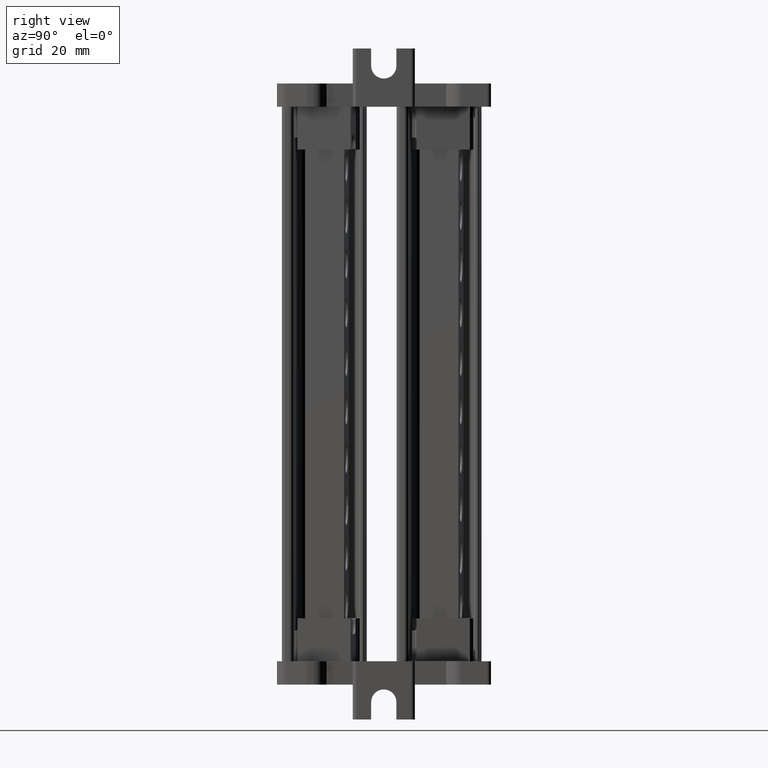
[diagram: clean part render]
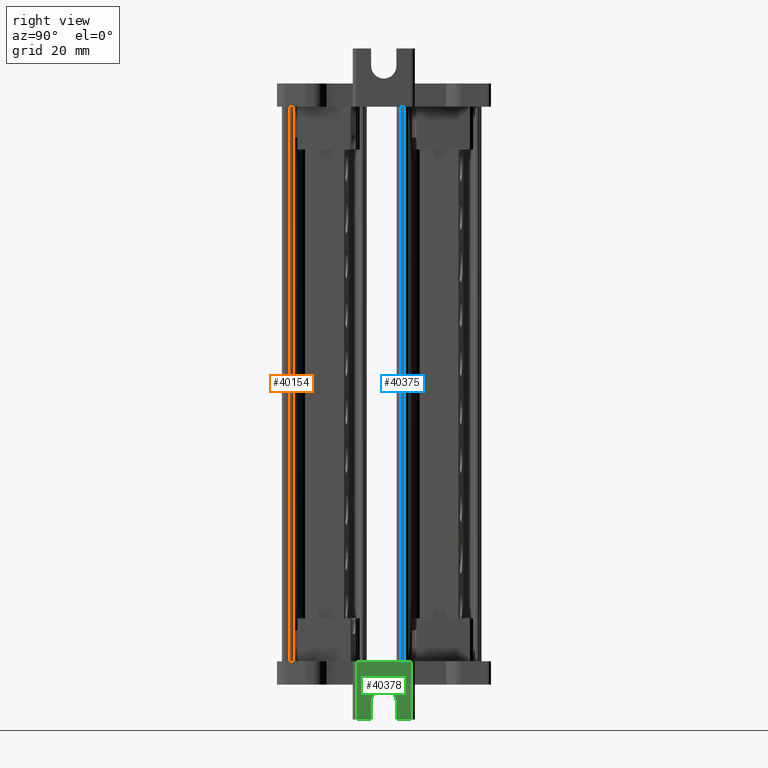
[diagram: same view with three faces highlighted in distinct colors, each labeled with its STEP entity id]
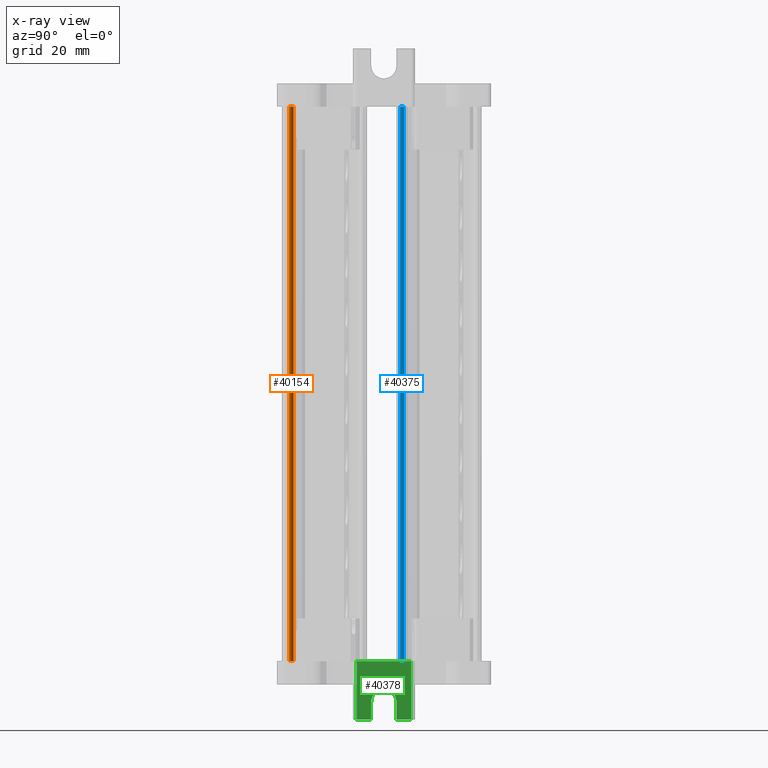
[diagram: x-ray of the same camera — body ghosted, the three highlighted faces saturated]
A machine part, right view with three faces highlighted in distinct colors.
The next image is the same camera in x-ray (body ghosted, the three faces saturated) — at least one of them is partly hidden behind the body in this view.
Their STEP definitions:

[orange] entity #40154 — the highlighted cylindrical surface (edge-blend (fillet) strip) has radius 1 mm, axis along (0, 0, -1).
#9180 = EDGE_LOOP ( 'NONE', ( #65043, #65085, #64961, #65086 ) ) ;
#11260 = AXIS2_PLACEMENT_3D ( 'NONE', #27195, #27197, #27200 ) ;
#20365 = CARTESIAN_POINT ( 'NONE',  ( 1902.625112612425300, 759.6468854338726300, 5.998782997044413500 ) ) ;
#20387 = DIRECTION ( 'NONE',  ( -1.345608130370957500E-014, -2.026698617924545500E-013, 1.000000000000000000 ) ) ;
#20422 = DIRECTION ( 'NONE',  ( 0.0000000000000000000, 1.000000000000000000, 2.029626466892862500E-013 ) ) ;
#20729 = CARTESIAN_POINT ( 'NONE',  ( 1902.729641075690100, 760.6414073292184000, 116.6204558807798400 ) ) ;
#20739 = LINE ( 'NONE', #20729, #64685 ) ;
#20767 = DIRECTION ( 'NONE',  ( -2.121574065240774700E-014, -2.018542887332994000E-013, 1.000000000000000000 ) ) ;
#20911 = DIRECTION ( 'NONE',  ( 1.345608130370957500E-014, 2.026698617924545500E-013, -1.000000000000000000 ) ) ;
#20930 = CARTESIAN_POINT ( 'NONE',  ( 1902.625112612423200, 759.6468854338437500, 148.5203038005996100 ) ) ;
#20967 = DIRECTION ( 'NONE',  ( 0.0000000000000000000, 1.000000000000000000, 1.942890293094022200E-013 ) ) ;
#27140 = FACE_OUTER_BOUND ( 'NONE', #9180, .T. ) ;
#27195 = CARTESIAN_POINT ( 'NONE',  ( 1902.625112612423700, 759.6468854338501200, 116.6204558807797300 ) ) ;
#27196 = CYLINDRICAL_SURFACE ( 'NONE', #11260, 1.000000000000000900 ) ;
#27197 = DIRECTION ( 'NONE',  ( 1.345608130370957500E-014, 2.026698617924545500E-013, -1.000000000000000000 ) ) ;
#27200 = DIRECTION ( 'NONE',  ( 0.0000000000000000000, 1.000000000000000000, 2.081668171172166700E-013 ) ) ;
#28956 = CARTESIAN_POINT ( 'NONE',  ( 1903.621307340721200, 759.5597300363576800, 148.5203038005997200 ) ) ;
#29130 = CARTESIAN_POINT ( 'NONE',  ( 1903.621307340723400, 759.5597300363864400, 5.998782997044410000 ) ) ;
#34321 = CARTESIAN_POINT ( 'NONE',  ( 1902.729641075692800, 760.6414073292406800, 5.998782997044506800 ) ) ;
#35304 = VERTEX_POINT ( 'NONE', #28956 ) ;
#35318 = VERTEX_POINT ( 'NONE', #29130 ) ;
#35612 = CARTESIAN_POINT ( 'NONE',  ( 1902.729641075690100, 760.6414073292118000, 148.5203038005998100 ) ) ;
#40154 = ADVANCED_FACE ( 'NONE', ( #27140 ), #27196, .T. ) ;
#40873 = EDGE_CURVE ( 'NONE', #35318, #57527, #64646, .T. ) ;
#40896 = EDGE_CURVE ( 'NONE', #57527, #57500, #20739, .T. ) ;
#40904 = EDGE_CURVE ( 'NONE', #57500, #35304, #64688, .T. ) ;
#43081 = VECTOR ( 'NONE', #67629, 1000.000000000000000 ) ;
#45725 = EDGE_CURVE ( 'NONE', #35304, #35318, #67670, .T. ) ;
#57500 = VERTEX_POINT ( 'NONE', #35612 ) ;
#57527 = VERTEX_POINT ( 'NONE', #34321 ) ;
#64646 = CIRCLE ( 'NONE', #64673, 1.000000000000000900 ) ;
#64673 = AXIS2_PLACEMENT_3D ( 'NONE', #20365, #20387, #20422 ) ;
#64685 = VECTOR ( 'NONE', #20767, 1000.000000000000000 ) ;
#64688 = CIRCLE ( 'NONE', #64693, 1.000000000000000900 ) ;
#64693 = AXIS2_PLACEMENT_3D ( 'NONE', #20930, #20911, #20967 ) ;
#64961 = ORIENTED_EDGE ( 'NONE', *, *, #40896, .T. ) ;
#65043 = ORIENTED_EDGE ( 'NONE', *, *, #45725, .T. ) ;
#65085 = ORIENTED_EDGE ( 'NONE', *, *, #40873, .T. ) ;
#65086 = ORIENTED_EDGE ( 'NONE', *, *, #40904, .T. ) ;
#67629 = DIRECTION ( 'NONE',  ( 1.345608130370957500E-014, 2.026698617924545500E-013, -1.000000000000000000 ) ) ;
#67670 = LINE ( 'NONE', #67710, #43081 ) ;
#67710 = CARTESIAN_POINT ( 'NONE',  ( 1903.621307310516600, 759.5597296911167900, 116.6204558807797300 ) ) ;

[blue] entity #40375 — the highlighted planar face has unit normal (-0.9962, 0.0872, 0).
#5041 = CARTESIAN_POINT ( 'NONE',  ( 1890.195761535776500, 788.0843407215392100, 116.6204558807864200 ) ) ;
#5054 = LINE ( 'NONE', #5041, #66046 ) ;
#5065 = DIRECTION ( 'NONE',  ( 4.237609273754032000E-015, -3.707398121389761000E-016, 1.000000000000000000 ) ) ;
#6356 = EDGE_CURVE ( 'NONE', #57723, #57708, #38891, .T. ) ;
#6399 = EDGE_CURVE ( 'NONE', #35826, #57723, #39097, .T. ) ;
#6439 = EDGE_CURVE ( 'NONE', #57708, #35851, #38543, .T. ) ;
#9522 = EDGE_LOOP ( 'NONE', ( #57132, #57046, #57053, #57066 ) ) ;
#11566 = AXIS2_PLACEMENT_3D ( 'NONE', #24953, #24937, #24954 ) ;
#24937 = DIRECTION ( 'NONE',  ( -0.9961947585032087100, 0.08715505223871888900, 4.253795994792301400E-015 ) ) ;
#24943 = FACE_OUTER_BOUND ( 'NONE', #9522, .T. ) ;
#24950 = PLANE ( 'NONE',  #11566 ) ;
#24953 = CARTESIAN_POINT ( 'NONE',  ( 1893.125950546117100, 821.5768217486839800, 116.6204558807864200 ) ) ;
#24954 = DIRECTION ( 'NONE',  ( -0.08715505223871887500, -0.9961947585032086000, 0.0000000000000000000 ) ) ;
#28969 = CARTESIAN_POINT ( 'NONE',  ( 1890.195761565982400, 788.0843410667939700, 148.5203038005998100 ) ) ;
#28975 = CARTESIAN_POINT ( 'NONE',  ( 1890.195761565983000, 788.0843410668081800, 5.998782997044513900 ) ) ;
#34566 = CARTESIAN_POINT ( 'NONE',  ( 1890.281770138661200, 789.0674313993532700, 5.998782997044411800 ) ) ;
#34667 = CARTESIAN_POINT ( 'NONE',  ( 1890.281770138659100, 789.0674313993246200, 148.5203038005997200 ) ) ;
#35826 = VERTEX_POINT ( 'NONE', #28969 ) ;
#35851 = VERTEX_POINT ( 'NONE', #28975 ) ;
#38511 = DIRECTION ( 'NONE',  ( -0.08715505223908461000, -0.9961947585031766300, 0.0000000000000000000 ) ) ;
#38539 = CARTESIAN_POINT ( 'NONE',  ( 1890.281770108453900, 789.0674310540773600, 5.998782997044410000 ) ) ;
#38543 = LINE ( 'NONE', #38539, #49162 ) ;
#38855 = CARTESIAN_POINT ( 'NONE',  ( 1890.281770108454600, 789.0674310540838400, 116.6204558807798200 ) ) ;
#38891 = LINE ( 'NONE', #38855, #49077 ) ;
#38893 = DIRECTION ( 'NONE',  ( 1.346109084957222500E-014, 2.026694229324841800E-013, -1.000000000000000000 ) ) ;
#39097 = LINE ( 'NONE', #39102, #49051 ) ;
#39102 = CARTESIAN_POINT ( 'NONE',  ( 1890.195761535776700, 788.0843407215393200, 148.5203038005998100 ) ) ;
#39105 = DIRECTION ( 'NONE',  ( 0.08715505223863802300, 0.9961947585032157000, 0.0000000000000000000 ) ) ;
#40375 = ADVANCED_FACE ( 'NONE', ( #24943 ), #24950, .F. ) ;
#42059 = EDGE_CURVE ( 'NONE', #35851, #35826, #5054, .T. ) ;
#49051 = VECTOR ( 'NONE', #39105, 1000.000000000000100 ) ;
#49077 = VECTOR ( 'NONE', #38893, 1000.000000000000000 ) ;
#49162 = VECTOR ( 'NONE', #38511, 1000.000000000000000 ) ;
#57046 = ORIENTED_EDGE ( 'NONE', *, *, #42059, .F. ) ;
#57053 = ORIENTED_EDGE ( 'NONE', *, *, #6439, .F. ) ;
#57066 = ORIENTED_EDGE ( 'NONE', *, *, #6356, .F. ) ;
#57132 = ORIENTED_EDGE ( 'NONE', *, *, #6399, .F. ) ;
#57708 = VERTEX_POINT ( 'NONE', #34566 ) ;
#57723 = VERTEX_POINT ( 'NONE', #34667 ) ;
#66046 = VECTOR ( 'NONE', #5065, 1000.000000000000000 ) ;

[green] entity #40378 — the highlighted planar face has unit normal (-1, -0, 0).
#3215 = DIRECTION ( 'NONE',  ( 0.0000000000000000000, 0.0000000000000000000, 1.000000000000000000 ) ) ;
#3217 = CARTESIAN_POINT ( 'NONE',  ( 1916.332438672975300, 787.1214843855300400, 5.998782997044410000 ) ) ;
#3221 = LINE ( 'NONE', #3217, #53564 ) ;
#3248 = LINE ( 'NONE', #3269, #53534 ) ;
#3250 = DIRECTION ( 'NONE',  ( 1.000000000000000000, 3.441691376337985300E-015, -0.0000000000000000000 ) ) ;
#3267 = DIRECTION ( 'NONE',  ( 0.0000000000000000000, -1.000000000000000000, 0.0000000000000000000 ) ) ;
#3269 = CARTESIAN_POINT ( 'NONE',  ( 1916.332438672975300, 791.3599581919510200, -8.974315998511389800 ) ) ;
#3272 = CARTESIAN_POINT ( 'NONE',  ( 1916.332438672975300, 780.6331414874559900, 5.998782997044410000 ) ) ;
#3273 = DIRECTION ( 'NONE',  ( 3.441691376337985300E-015, -1.000000000000000000, 0.0000000000000000000 ) ) ;
#3274 = CARTESIAN_POINT ( 'NONE',  ( 1916.332438672975300, 783.8773129364929000, -4.482386299845140700 ) ) ;
#3284 = LINE ( 'NONE', #3272, #53544 ) ;
#3285 = DIRECTION ( 'NONE',  ( -0.0000000000000000000, -0.0000000000000000000, -1.000000000000000000 ) ) ;
#3290 = DIRECTION ( 'NONE',  ( 0.0000000000000000000, 0.0000000000000000000, 1.000000000000000000 ) ) ;
#3304 = LINE ( 'NONE', #3307, #53569 ) ;
#3307 = CARTESIAN_POINT ( 'NONE',  ( 1916.332438672975300, 776.8898667385669800, 5.998782997044410000 ) ) ;
#3675 = DIRECTION ( 'NONE',  ( 3.441691376337985300E-015, -1.000000000000000000, 0.0000000000000000000 ) ) ;
#3695 = CARTESIAN_POINT ( 'NONE',  ( 1916.332438672975300, 791.3599581919510200, -8.974315998511389800 ) ) ;
#3715 = LINE ( 'NONE', #3695, #53407 ) ;
#3946 = CARTESIAN_POINT ( 'NONE',  ( 1916.332438672975300, 790.8647591344191600, 5.998782997044410000 ) ) ;
#3958 = DIRECTION ( 'NONE',  ( -0.0000000000000000000, -0.0000000000000000000, -1.000000000000000000 ) ) ;
#3970 = LINE ( 'NONE', #3946, #53453 ) ;
#5473 = EDGE_CURVE ( 'NONE', #35690, #35760, #50762, .T. ) ;
#9252 = EDGE_LOOP ( 'NONE', ( #63547, #63553, #63554, #63555, #63575, #63542, #63529, #63559 ) ) ;
#11531 = AXIS2_PLACEMENT_3D ( 'NONE', #24912, #24925, #24939 ) ;
#24903 = FACE_OUTER_BOUND ( 'NONE', #9252, .T. ) ;
#24912 = CARTESIAN_POINT ( 'NONE',  ( 1916.332438672975300, 791.3599581919510200, 5.998782997044410000 ) ) ;
#24925 = DIRECTION ( 'NONE',  ( -1.000000000000000000, -3.441691376337985300E-015, 0.0000000000000000000 ) ) ;
#24931 = PLANE ( 'NONE',  #11531 ) ;
#24939 = DIRECTION ( 'NONE',  ( 3.441691376337985300E-015, -1.000000000000000000, 0.0000000000000000000 ) ) ;
#28873 = CARTESIAN_POINT ( 'NONE',  ( 1916.332438672975300, 790.8647591344191600, 5.998782997044410000 ) ) ;
#30080 = CARTESIAN_POINT ( 'NONE',  ( 1916.332438672975300, 790.8647591344191600, -8.974315998511388100 ) ) ;
#30277 = CARTESIAN_POINT ( 'NONE',  ( 1916.332438672975300, 776.8898667385669800, 5.998782997044410000 ) ) ;
#30319 = CARTESIAN_POINT ( 'NONE',  ( 1916.332438672975300, 787.1214843855300400, -4.482386299845139800 ) ) ;
#30390 = CARTESIAN_POINT ( 'NONE',  ( 1916.332438672975300, 780.6331414874558700, -8.974315998511389800 ) ) ;
#30430 = CARTESIAN_POINT ( 'NONE',  ( 1916.332438672975300, 787.1214843855301500, -8.974315998511389800 ) ) ;
#30444 = CARTESIAN_POINT ( 'NONE',  ( 1916.332438672975300, 776.8898667385669800, -8.974315998511389800 ) ) ;
#30477 = CARTESIAN_POINT ( 'NONE',  ( 1916.332438672975300, 780.6331414874558700, -4.482386299845139800 ) ) ;
#35653 = VERTEX_POINT ( 'NONE', #30080 ) ;
#35683 = VERTEX_POINT ( 'NONE', #30430 ) ;
#35689 = VERTEX_POINT ( 'NONE', #30444 ) ;
#35690 = VERTEX_POINT ( 'NONE', #30277 ) ;
#35693 = VERTEX_POINT ( 'NONE', #30390 ) ;
#35703 = VERTEX_POINT ( 'NONE', #30319 ) ;
#35740 = VERTEX_POINT ( 'NONE', #30477 ) ;
#35760 = VERTEX_POINT ( 'NONE', #28873 ) ;
#40378 = ADVANCED_FACE ( 'NONE', ( #24903 ), #24931, .F. ) ;
#42739 = EDGE_CURVE ( 'NONE', #35653, #35683, #3715, .T. ) ;
#42814 = EDGE_CURVE ( 'NONE', #35760, #35653, #3970, .T. ) ;
#42830 = EDGE_CURVE ( 'NONE', #35683, #35703, #3221, .T. ) ;
#42843 = EDGE_CURVE ( 'NONE', #35703, #35740, #53529, .T. ) ;
#42846 = EDGE_CURVE ( 'NONE', #35693, #35689, #3248, .T. ) ;
#42870 = EDGE_CURVE ( 'NONE', #35740, #35693, #3284, .T. ) ;
#42898 = EDGE_CURVE ( 'NONE', #35689, #35690, #3304, .T. ) ;
#50762 = LINE ( 'NONE', #50763, #80119 ) ;
#50763 = CARTESIAN_POINT ( 'NONE',  ( 1916.332438672975300, 799.9770333218530100, 5.998782997044410000 ) ) ;
#50835 = DIRECTION ( 'NONE',  ( -0.0000000000000000000, 1.000000000000000000, 0.0000000000000000000 ) ) ;
#53407 = VECTOR ( 'NONE', #3675, 1000.000000000000000 ) ;
#53453 = VECTOR ( 'NONE', #3958, 1000.000000000000000 ) ;
#53526 = AXIS2_PLACEMENT_3D ( 'NONE', #3274, #3250, #3267 ) ;
#53529 = CIRCLE ( 'NONE', #53526, 3.244171449037103200 ) ;
#53534 = VECTOR ( 'NONE', #3273, 1000.000000000000000 ) ;
#53544 = VECTOR ( 'NONE', #3285, 1000.000000000000000 ) ;
#53564 = VECTOR ( 'NONE', #3215, 1000.000000000000000 ) ;
#53569 = VECTOR ( 'NONE', #3290, 1000.000000000000000 ) ;
#63529 = ORIENTED_EDGE ( 'NONE', *, *, #42739, .F. ) ;
#63542 = ORIENTED_EDGE ( 'NONE', *, *, #42830, .F. ) ;
#63547 = ORIENTED_EDGE ( 'NONE', *, *, #5473, .F. ) ;
#63553 = ORIENTED_EDGE ( 'NONE', *, *, #42898, .F. ) ;
#63554 = ORIENTED_EDGE ( 'NONE', *, *, #42846, .F. ) ;
#63555 = ORIENTED_EDGE ( 'NONE', *, *, #42870, .F. ) ;
#63559 = ORIENTED_EDGE ( 'NONE', *, *, #42814, .F. ) ;
#63575 = ORIENTED_EDGE ( 'NONE', *, *, #42843, .F. ) ;
#80119 = VECTOR ( 'NONE', #50835, 1000.000000000000000 ) ;